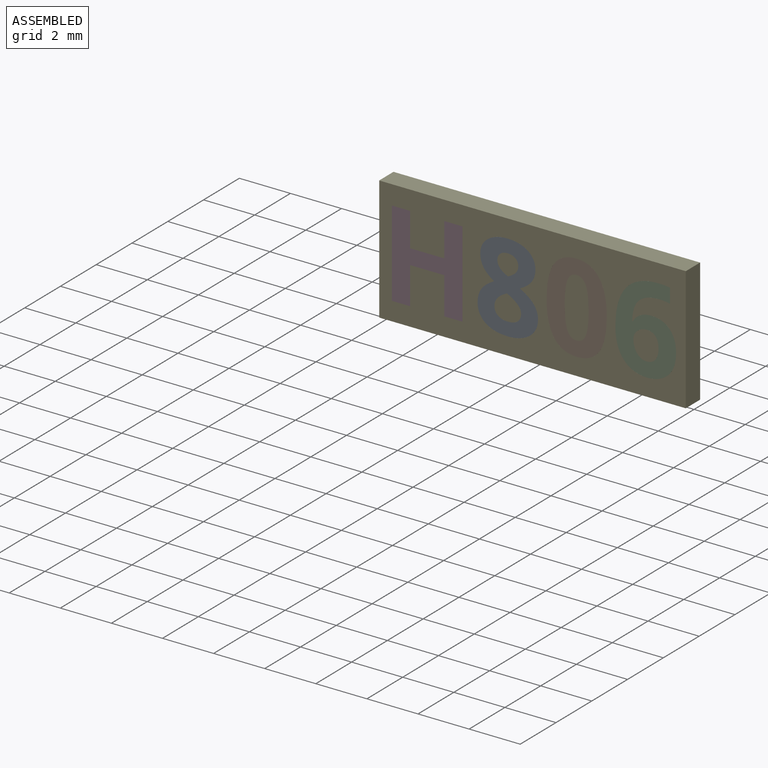
[diagram: assembled view]
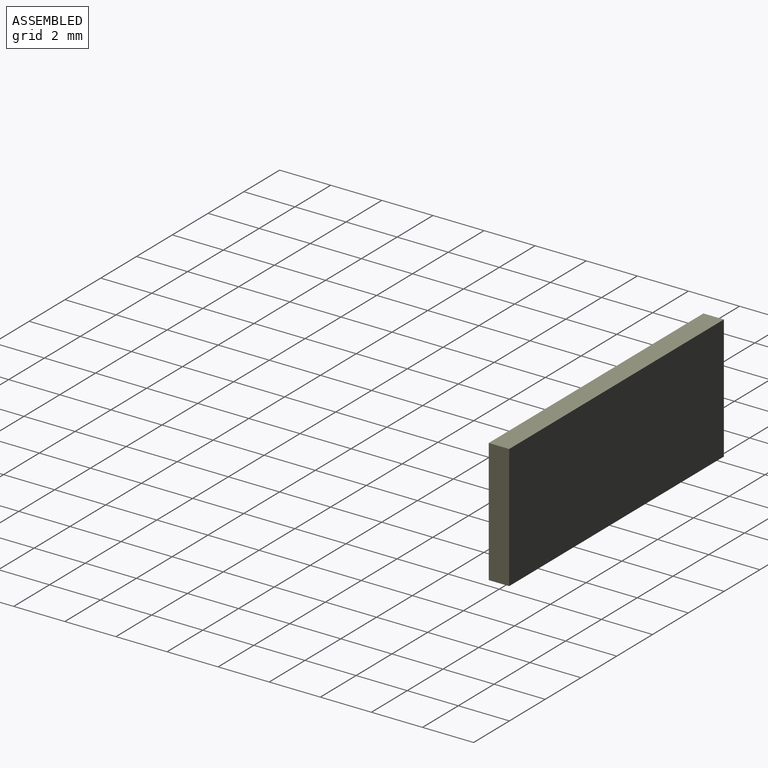
[diagram: assembled view, second angle]
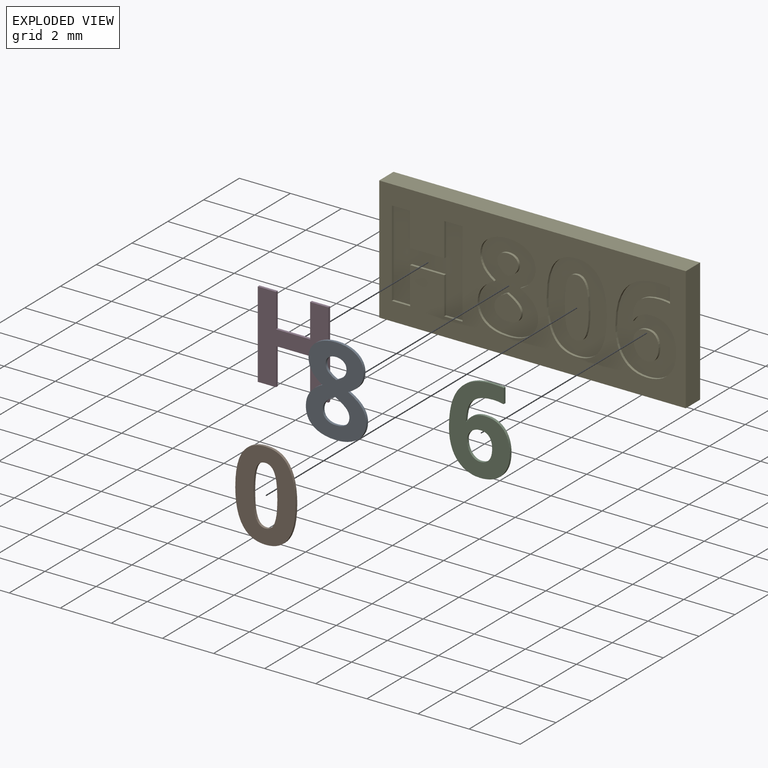
[diagram: exploded view]
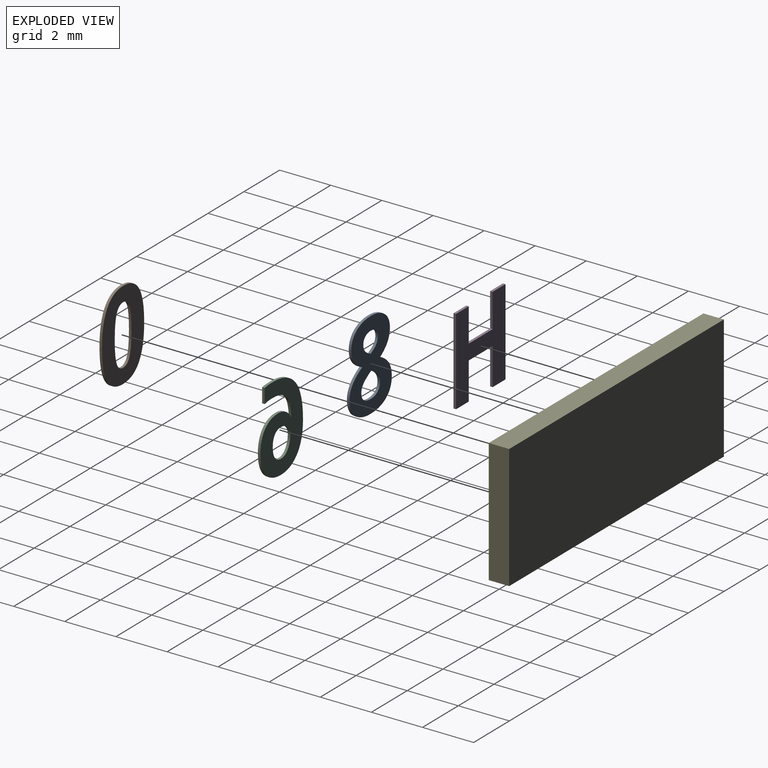
[diagram: exploded view, second angle]
ASSEMBLY  parts=5 mates=4
PART A: 33 faces, bbox 2.4x0.1x3.5 mm
  f0: plane 3.46x2.37mm, normal (0,-1,0), area 5.2mm2, adj f1,f2,f3,f4,f5,f6,f7,f8
  f1: extruded ~0.59x0.3mm, area 0.1mm2, adj f0,f2,f23,f25
  f2: extruded ~0.45x0.13mm, area 0mm2, adj f0,f1,f3,f23
  f3: extruded ~0.42x0.39mm, area 0.1mm2, adj f0,f2,f4,f23
  f4: extruded ~0.49x0.39mm, area 0.1mm2, adj f0,f3,f5,f23
  f5: extruded ~0.51x0.15mm, area 0.1mm2, adj f0,f4,f6,f23
  f6: extruded ~0.67x0.32mm, area 0.1mm2, adj f0,f5,f7,f23
  f7: extruded ~0.87x0.24mm, area 0.1mm2, adj f0,f6,f8,f23
  f8: extruded ~0.86x0.25mm, area 0.1mm2, adj f0,f7,f9,f23
  f9: extruded ~0.67x0.33mm, area 0.1mm2, adj f0,f8,f10,f23
  f10: extruded ~0.48x0.17mm, area 0.1mm2, adj f0,f9,f11,f23
  f11: extruded ~0.54x0.42mm, area 0.1mm2, adj f0,f10,f12,f23
  f12: extruded ~0.46x0.36mm, area 0.1mm2, adj f0,f11,f13,f23
  f13: extruded ~0.46x0.14mm, area 0mm2, adj f0,f12,f23,f24
  f14: extruded ~0.42x0.29mm, area 0.1mm2, adj f0,f15,f23,f31
  f15: extruded ~0.29x0.13mm, area 0mm2, adj f0,f14,f16,f23
  f16: extruded ~0.3x0.13mm, area 0mm2, adj f0,f15,f17,f23
  f17: extruded ~0.4x0.11mm, area 0mm2, adj f0,f16,f23,f30
  f18: extruded ~0.25x0.12mm, area 0mm2, adj f0,f19,f23,f28
  f19: extruded ~0.26x0.1mm, area 0mm2, adj f0,f18,f20,f23
  f20: extruded ~0.32x0.22mm, area 0mm2, adj f0,f19,f21,f23
  f21: extruded ~0.32x0.22mm, area 0mm2, adj f0,f20,f22,f23
  f22: extruded ~0.25x0.1mm, area 0mm2, adj f0,f21,f23,f27
  f23: plane 3.46x2.37mm, normal (0,1,0), area 5.2mm2, adj f1,f2,f3,f4,f5,f6,f7,f8
  f24: extruded ~0.59x0.3mm, area 0.1mm2, adj f0,f13,f23,f26
  f25: extruded ~0.78x0.22mm, area 0.1mm2, adj f0,f1,f23,f26
  f26: extruded ~0.78x0.22mm, area 0.1mm2, adj f0,f23,f24,f25
  f27: extruded ~0.25x0.11mm, area 0mm2, adj f0,f22,f23,f29
  f28: extruded ~0.3x0.1mm, area 0mm2, adj f0,f18,f23,f29
  f29: extruded ~0.29x0.1mm, area 0mm2, adj f0,f23,f27,f28
  f30: extruded ~0.38x0.11mm, area 0mm2, adj f0,f17,f23,f32
  f31: extruded ~0.57x0.49mm, area 0.1mm2, adj f0,f14,f23,f32
  f32: extruded ~0.31x0.14mm, area 0mm2, adj f0,f23,f30,f31
PART B: 18 faces, bbox 2.4x0.1x3.5 mm
  f0: plane 3.47x2.36mm, normal (0,-1,0), area 5mm2, adj f1,f2,f3,f4,f5,f6,f7,f8
  f1: extruded ~0.88x0.44mm, area 0.1mm2, adj f0,f2,f11,f13
  f2: extruded ~0.89x0.42mm, area 0.1mm2, adj f0,f1,f3,f11
  f3: extruded ~1.32x0.29mm, area 0.1mm2, adj f0,f2,f4,f11
  f4: extruded ~1.29x0.3mm, area 0.1mm2, adj f0,f3,f5,f11
  f5: extruded ~0.88x0.44mm, area 0.1mm2, adj f0,f4,f11,f12
  f6: extruded ~0.36x0.27mm, area 0mm2, adj f0,f7,f11,f16
  f7: extruded ~0.36x0.27mm, area 0mm2, adj f0,f6,f8,f11
  f8: extruded ~0.89x0.11mm, area 0.1mm2, adj f0,f7,f9,f11
  f9: extruded ~0.89x0.11mm, area 0.1mm2, adj f0,f8,f10,f11
  f10: extruded ~0.36x0.27mm, area 0mm2, adj f0,f9,f11,f15
  f11: plane 3.47x2.36mm, normal (0,1,0), area 5mm2, adj f1,f2,f3,f4,f5,f6,f7,f8
  f12: extruded ~0.89x0.42mm, area 0.1mm2, adj f0,f5,f11,f14
  f13: extruded ~1.3x0.3mm, area 0.1mm2, adj f0,f1,f11,f14
  f14: extruded ~1.31x0.29mm, area 0.1mm2, adj f0,f11,f12,f13
  f15: extruded ~0.36x0.27mm, area 0mm2, adj f0,f10,f11,f17
  f16: extruded ~0.89x0.11mm, area 0.1mm2, adj f0,f6,f11,f17
  f17: extruded ~0.89x0.11mm, area 0.1mm2, adj f0,f11,f15,f16
PART C: 27 faces, bbox 2.4x0.1x3.5 mm
  f0: plane 3.46x2.38mm, normal (0,-1,0), area 4.8mm2, adj f1,f2,f3,f4,f5,f6,f7,f8
  f1: extruded ~0.51x0.43mm, area 0.1mm2, adj f0,f2,f20,f22
  f2: extruded ~0.65x0.17mm, area 0.1mm2, adj f0,f1,f3,f20
  f3: extruded ~0.84x0.32mm, area 0.1mm2, adj f0,f2,f4,f20
  f4: extruded ~0.85x0.3mm, area 0.1mm2, adj f0,f3,f5,f20
  f5: extruded ~0.78x0.26mm, area 0.1mm2, adj f0,f4,f6,f20
  f6: extruded ~0.71x0.28mm, area 0.1mm2, adj f0,f5,f7,f20
  f7: extruded ~0.73x0.39mm, area 0.1mm2, adj f0,f6,f8,f20
  f8: plane 0.1x0.03mm, normal (0,0,1), area 0mm2, adj f0,f7,f9,f20
  f9: extruded ~0.62x0.14mm, area 0.1mm2, adj f0,f8,f10,f20
  f10: extruded ~0.35x0.33mm, area 0mm2, adj f0,f9,f11,f20
  f11: extruded ~0.6x0.11mm, area 0.1mm2, adj f0,f10,f12,f20
  f12: extruded ~0.41x0.1mm, area 0mm2, adj f0,f11,f13,f20
  f13: plane 0.57x0.1mm, normal (1,0,0), area 0.1mm2, adj f0,f12,f14,f20
  f14: extruded ~0.45x0.1mm, area 0mm2, adj f0,f13,f20,f21
  f15: extruded ~0.46x0.14mm, area 0mm2, adj f0,f16,f20,f25
  f16: extruded ~0.33x0.15mm, area 0mm2, adj f0,f15,f17,f20
  f17: extruded ~0.37x0.14mm, area 0mm2, adj f0,f16,f18,f20
  f18: extruded ~0.34x0.14mm, area 0mm2, adj f0,f17,f19,f20
  f19: extruded ~0.39x0.11mm, area 0mm2, adj f0,f18,f20,f24
  f20: plane 3.46x2.38mm, normal (0,1,0), area 4.8mm2, adj f1,f2,f3,f4,f5,f6,f7,f8
  f21: extruded ~1.27x0.49mm, area 0.1mm2, adj f0,f14,f20,f23
  f22: extruded ~0.8x0.15mm, area 0.1mm2, adj f0,f1,f20,f23
  f23: extruded ~1.49x0.42mm, area 0.2mm2, adj f0,f20,f21,f22
  f24: extruded ~0.44x0.12mm, area 0mm2, adj f0,f19,f20,f26
  f25: extruded ~0.37x0.19mm, area 0mm2, adj f0,f15,f20,f26
  f26: extruded ~0.35x0.15mm, area 0mm2, adj f0,f20,f24,f25
PART D: 14 faces, bbox 2.8x0.1x3.4 mm
  f0: plane 3.37x2.76mm, normal (0,-1,0), area 5.6mm2, adj f1,f2,f3,f4,f5,f6,f7,f8
  f1: plane 0.71x0.1mm, normal (0,0,1), area 0.1mm2, adj f0,f2,f10,f12
  f2: plane 1.32x0.1mm, normal (-1,0,0), area 0.1mm2, adj f0,f1,f3,f10
  f3: plane 1.33x0.1mm, normal (0,0,1), area 0.1mm2, adj f0,f2,f4,f10
  f4: plane 1.32x0.1mm, normal (1,0,0), area 0.1mm2, adj f0,f3,f5,f10
  f5: plane 0.72x0.1mm, normal (0,0,1), area 0.1mm2, adj f0,f4,f6,f10
  f6: plane 3.37x0.1mm, normal (-1,0,0), area 0.3mm2, adj f0,f5,f7,f10
  f7: plane 0.72x0.1mm, normal (0,0,-1), area 0.1mm2, adj f0,f6,f8,f10
  f8: plane 1.46x0.1mm, normal (1,0,0), area 0.1mm2, adj f0,f7,f9,f10
  f9: plane 1.33x0.1mm, normal (0,0,-1), area 0.1mm2, adj f0,f8,f10,f11
  f10: plane 3.37x2.76mm, normal (0,1,0), area 5.6mm2, adj f1,f2,f3,f4,f5,f6,f7,f8
  f11: plane 1.46x0.1mm, normal (-1,0,0), area 0.1mm2, adj f0,f9,f10,f13
  f12: plane 3.37x0.1mm, normal (1,0,0), area 0.3mm2, adj f0,f1,f10,f13
  f13: plane 0.71x0.1mm, normal (0,0,-1), area 0.1mm2, adj f0,f10,f11,f12
PART E: 98 faces, bbox 12x0.8x4.9 mm
  f0: plane 12x4.85mm, normal (0,-1,0), area 33.6mm2, adj f1,f2,f3,f4,f6,f7,f8,f9
  f1: plane 12x0.8mm, normal (0,0,-1), area 9.6mm2, adj f0,f2,f4,f5
  f2: plane 4.85x0.8mm, normal (1,0,0), area 3.9mm2, adj f0,f1,f3,f5
  f3: plane 12x0.8mm, normal (0,0,1), area 9.6mm2, adj f0,f2,f4,f5
  f4: plane 4.85x0.8mm, normal (-1,0,0), area 3.9mm2, adj f0,f1,f3,f5
  f5: plane 12x4.85mm, normal (0,1,0), area 58.2mm2, adj f1,f2,f3,f4
  f6: extruded ~0.78x0.22mm, area 0.1mm2, adj f0,f7,f36,f37
  f7: extruded ~0.59x0.3mm, area 0.1mm2, adj f0,f6,f8,f37
  f8: extruded ~0.45x0.13mm, area 0mm2, adj f0,f7,f9,f37
  f9: extruded ~0.42x0.39mm, area 0.1mm2, adj f0,f8,f10,f37
  f10: extruded ~0.49x0.39mm, area 0.1mm2, adj f0,f9,f11,f37
  f11: extruded ~0.51x0.15mm, area 0.1mm2, adj f0,f10,f12,f37
  f12: extruded ~0.67x0.32mm, area 0.1mm2, adj f0,f11,f13,f37
  f13: extruded ~0.87x0.24mm, area 0.1mm2, adj f0,f12,f14,f37
  f14: extruded ~0.86x0.25mm, area 0.1mm2, adj f0,f13,f15,f37
  f15: extruded ~0.67x0.33mm, area 0.1mm2, adj f0,f14,f16,f37
  f16: extruded ~0.48x0.17mm, area 0.1mm2, adj f0,f15,f17,f37
  f17: extruded ~0.54x0.42mm, area 0.1mm2, adj f0,f16,f18,f37
  f18: extruded ~0.46x0.36mm, area 0.1mm2, adj f0,f17,f19,f37
  f19: extruded ~0.46x0.14mm, area 0mm2, adj f0,f18,f20,f37
  f20: extruded ~0.59x0.3mm, area 0.1mm2, adj f0,f19,f36,f37
  f21: extruded ~0.57x0.49mm, area 0.1mm2, adj f22,f34,f37,f39
  f22: extruded ~0.42x0.29mm, area 0.1mm2, adj f21,f23,f37,f39
  f23: extruded ~0.29x0.13mm, area 0mm2, adj f22,f24,f37,f39
  f24: extruded ~0.3x0.13mm, area 0mm2, adj f23,f25,f37,f39
  f25: extruded ~0.4x0.11mm, area 0mm2, adj f24,f26,f37,f39
  f26: extruded ~0.38x0.11mm, area 0mm2, adj f25,f34,f37,f39
  f27: extruded ~0.3x0.1mm, area 0mm2, adj f28,f35,f37,f38
  f28: extruded ~0.25x0.12mm, area 0mm2, adj f27,f29,f37,f38
  f29: extruded ~0.26x0.1mm, area 0mm2, adj f28,f30,f37,f38
  f30: extruded ~0.32x0.22mm, area 0mm2, adj f29,f31,f37,f38
  f31: extruded ~0.32x0.22mm, area 0mm2, adj f30,f32,f37,f38
  f32: extruded ~0.25x0.1mm, area 0mm2, adj f31,f33,f37,f38
  f33: extruded ~0.25x0.11mm, area 0mm2, adj f32,f35,f37,f38
  f34: extruded ~0.31x0.14mm, area 0mm2, adj f21,f26,f37,f39
  f35: extruded ~0.29x0.1mm, area 0mm2, adj f27,f33,f37,f38
  f36: extruded ~0.78x0.22mm, area 0.1mm2, adj f0,f6,f20,f37
  f37: plane 3.46x2.37mm, normal (0,-1,0), area 5.2mm2, adj f6,f7,f8,f9,f10,f11,f12,f13
  f38: plane 0.82x0.82mm, normal (0,-1,0), area 0.5mm2, adj f27,f28,f29,f30,f31,f32,f33,f35
  f39: plane 1.04x0.99mm, normal (0,-1,0), area 0.8mm2, adj f21,f22,f23,f24,f25,f26,f34
  f40: extruded ~0.8x0.15mm, area 0.1mm2, adj f0,f41,f64,f65
  f41: extruded ~0.51x0.43mm, area 0.1mm2, adj f0,f40,f42,f65
  f42: extruded ~0.65x0.17mm, area 0.1mm2, adj f0,f41,f43,f65
  f43: extruded ~0.84x0.32mm, area 0.1mm2, adj f0,f42,f44,f65
  f44: extruded ~0.85x0.3mm, area 0.1mm2, adj f0,f43,f45,f65
  f45: extruded ~0.78x0.26mm, area 0.1mm2, adj f0,f44,f46,f65
  f46: extruded ~0.71x0.28mm, area 0.1mm2, adj f0,f45,f47,f65
  f47: extruded ~0.73x0.39mm, area 0.1mm2, adj f0,f46,f48,f65
  f48: plane 0.1x0.03mm, normal (0,0,-1), area 0mm2, adj f0,f47,f49,f65
  f49: extruded ~0.62x0.14mm, area 0.1mm2, adj f0,f48,f50,f65
  f50: extruded ~0.35x0.33mm, area 0mm2, adj f0,f49,f51,f65
  f51: extruded ~0.6x0.11mm, area 0.1mm2, adj f0,f50,f52,f65
  f52: extruded ~0.41x0.1mm, area 0mm2, adj f0,f51,f53,f65
  f53: plane 0.57x0.1mm, normal (-1,0,0), area 0.1mm2, adj f0,f52,f54,f65
  f54: extruded ~0.45x0.1mm, area 0mm2, adj f0,f53,f55,f65
  f55: extruded ~1.27x0.49mm, area 0.1mm2, adj f0,f54,f64,f65
  f56: extruded ~0.37x0.19mm, area 0mm2, adj f57,f63,f65,f66
  f57: extruded ~0.46x0.14mm, area 0mm2, adj f56,f58,f65,f66
  f58: extruded ~0.33x0.15mm, area 0mm2, adj f57,f59,f65,f66
  f59: extruded ~0.37x0.14mm, area 0mm2, adj f58,f60,f65,f66
  f60: extruded ~0.34x0.14mm, area 0mm2, adj f59,f61,f65,f66
  f61: extruded ~0.39x0.11mm, area 0mm2, adj f60,f62,f65,f66
  f62: extruded ~0.44x0.12mm, area 0mm2, adj f61,f63,f65,f66
  f63: extruded ~0.35x0.15mm, area 0mm2, adj f56,f62,f65,f66
  f64: extruded ~1.49x0.42mm, area 0.2mm2, adj f0,f40,f55,f65
  f65: plane 3.46x2.38mm, normal (0,-1,0), area 4.8mm2, adj f40,f41,f42,f43,f44,f45,f46,f47
  f66: plane 1.12x0.98mm, normal (0,-1,0), area 0.9mm2, adj f56,f57,f58,f59,f60,f61,f62,f63
  f67: extruded ~1.3x0.3mm, area 0.1mm2, adj f0,f68,f82,f83
  f68: extruded ~0.88x0.44mm, area 0.1mm2, adj f0,f67,f69,f83
  f69: extruded ~0.89x0.42mm, area 0.1mm2, adj f0,f68,f70,f83
  f70: extruded ~1.32x0.29mm, area 0.1mm2, adj f0,f69,f71,f83
  f71: extruded ~1.29x0.3mm, area 0.1mm2, adj f0,f70,f72,f83
  f72: extruded ~0.88x0.44mm, area 0.1mm2, adj f0,f71,f73,f83
  f73: extruded ~0.89x0.42mm, area 0.1mm2, adj f0,f72,f82,f83
  f74: extruded ~0.89x0.11mm, area 0.1mm2, adj f75,f81,f83,f84
  f75: extruded ~0.36x0.27mm, area 0mm2, adj f74,f76,f83,f84
  f76: extruded ~0.36x0.27mm, area 0mm2, adj f75,f77,f83,f84
  f77: extruded ~0.89x0.11mm, area 0.1mm2, adj f76,f78,f83,f84
  f78: extruded ~0.89x0.11mm, area 0.1mm2, adj f77,f79,f83,f84
  f79: extruded ~0.36x0.27mm, area 0mm2, adj f78,f80,f83,f84
  f80: extruded ~0.36x0.27mm, area 0mm2, adj f79,f81,f83,f84
  f81: extruded ~0.89x0.11mm, area 0.1mm2, adj f74,f80,f83,f84
  f82: extruded ~1.31x0.29mm, area 0.1mm2, adj f0,f67,f73,f83
  f83: plane 3.47x2.36mm, normal (0,-1,0), area 5mm2, adj f67,f68,f69,f70,f71,f72,f73,f74
  f84: plane 2.32x0.94mm, normal (0,-1,0), area 1.8mm2, adj f74,f75,f76,f77,f78,f79,f80,f81
  f85: plane 3.37x0.1mm, normal (-1,0,0), area 0.3mm2, adj f0,f86,f96,f97
  f86: plane 0.71x0.1mm, normal (0,0,-1), area 0.1mm2, adj f0,f85,f87,f97
  f87: plane 1.32x0.1mm, normal (1,0,0), area 0.1mm2, adj f0,f86,f88,f97
  f88: plane 1.33x0.1mm, normal (0,0,-1), area 0.1mm2, adj f0,f87,f89,f97
  f89: plane 1.32x0.1mm, normal (-1,0,0), area 0.1mm2, adj f0,f88,f90,f97
  f90: plane 0.72x0.1mm, normal (0,0,-1), area 0.1mm2, adj f0,f89,f91,f97
  f91: plane 3.37x0.1mm, normal (1,0,0), area 0.3mm2, adj f0,f90,f92,f97
  f92: plane 0.72x0.1mm, normal (0,0,1), area 0.1mm2, adj f0,f91,f93,f97
  f93: plane 1.46x0.1mm, normal (-1,0,0), area 0.1mm2, adj f0,f92,f94,f97
  f94: plane 1.33x0.1mm, normal (0,0,1), area 0.1mm2, adj f0,f93,f95,f97
  f95: plane 1.46x0.1mm, normal (1,0,0), area 0.1mm2, adj f0,f94,f96,f97
  f96: plane 0.71x0.1mm, normal (0,0,1), area 0.1mm2, adj f0,f85,f95,f97
  f97: plane 3.37x2.76mm, normal (0,-1,0), area 5.6mm2, adj f85,f86,f87,f88,f89,f90,f91,f92
PLACE A t=(-2.49,0.37,-0.02)mm
PLACE B t=(-1.14,0.37,-0.02)mm
PLACE C t=(2.91,0.37,-0.02)mm
PLACE D t=(-0.04,0.37,-0.02)mm
PLACE E t=(-0.02,0.37,-0.02)mm
MATE fastened B.f0 <-> E.f84  axis (0,-1,0) through (1.7,-0.43,-1.19)mm
MATE fastened C.f0 <-> E.f0  axis (0,-1,0) through (5.36,-0.43,1.09)mm
MATE fastened A.f0 <-> E.f0  axis (0,-1,0) through (-0.99,-0.43,-1.77)mm
MATE fastened D.f0 <-> E.f0  axis (0,-1,0) through (-5.53,-0.43,-1.72)mm
